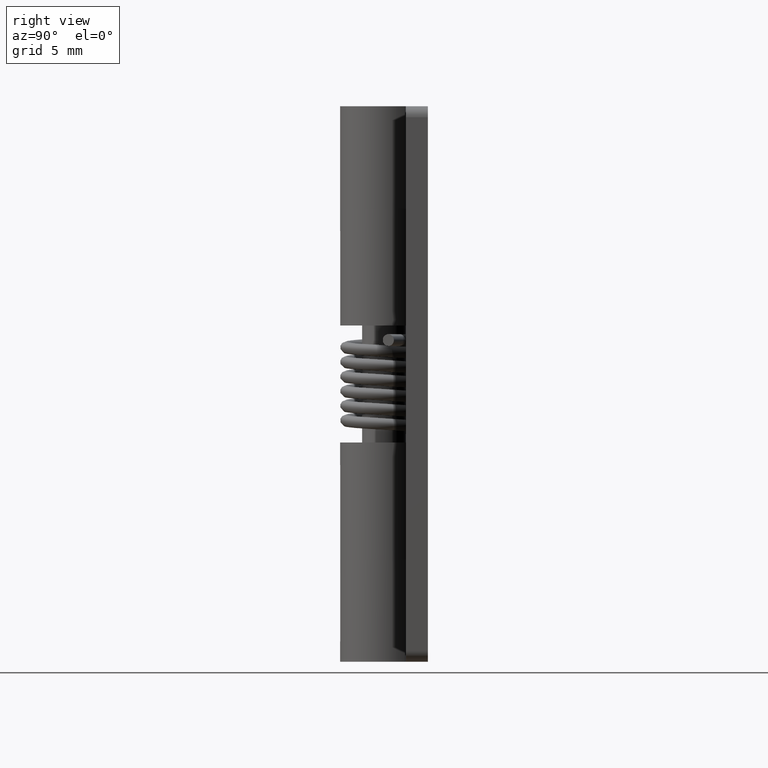
[diagram: clean part render]
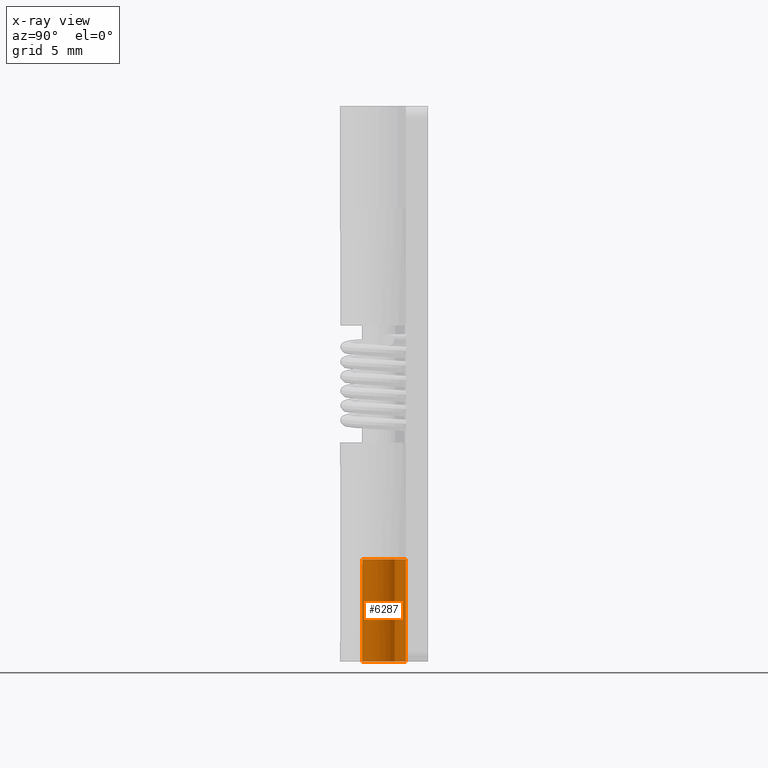
[diagram: x-ray — body ghosted, one internal face saturated and labeled with its STEP entity id]
A machine part, right view, then the same camera in x-ray: the body is ghosted and one INTERNAL B-rep face — a face not visible from any outside direction — is saturated and labeled: STEP entity #6287.
In plain terms, the highlighted face is a freeform B-spline surface patch.
Its self-contained STEP definition (entity closure, byte-faithful):
#5927=CARTESIAN_POINT('',(1.313154598666890,0.725000000000000,6.999992000000000));
#5928=VERTEX_POINT('',#5927);
#5934=CARTESIAN_POINT('',(0.0,1.500000000000000,6.999992000000000));
#5935=VERTEX_POINT('',#5934);
#5936=CARTESIAN_POINT('',(0.0,1.500000000000000,6.999992000000000));
#5937=CARTESIAN_POINT('',(-1.145299021212404,1.500000000000000,6.999992000000000));
#5938=CARTESIAN_POINT('',(-1.447014444021651,0.395157182387862,6.999992000000000));
#5939=CARTESIAN_POINT('',(-1.748729866830898,-0.709685635224276,6.999992000000000));
#5940=CARTESIAN_POINT('',(-0.762397534098845,-1.291801068276381,6.999992000000000));
#5941=CARTESIAN_POINT('',(0.223934798633206,-1.873916501328486,6.999992000000000));
#5942=CARTESIAN_POINT('',(1.045325295443045,-1.075776476182163,6.999992000000000));
#5943=CARTESIAN_POINT('',(1.866715792252885,-0.277636451035838,6.999992000000000));
#5944=CARTESIAN_POINT('',(1.313154598666890,0.724999999999999,6.999992000000000));
#5952=(BOUNDED_CURVE()B_SPLINE_CURVE(2,(#5936,#5937,#5938,#5939,#5940,#5941,#5942,#5943,#5944),.UNSPECIFIED.,.F.,.U.)B_SPLINE_CURVE_WITH_KNOTS((3,2,2,2,3),(0.0,0.250000000000000,0.500000000000000,0.750000000000000,1.0),.UNSPECIFIED.)CURVE()GEOMETRIC_REPRESENTATION_ITEM()RATIONAL_B_SPLINE_CURVE((1.0,0.794807562115481,1.0,0.794807562115481,1.0,0.794807562115481,1.0,0.794807562115481,1.0))REPRESENTATION_ITEM(''));
#5953=EDGE_CURVE('',#5935,#5928,#5952,.T.);
#6151=CARTESIAN_POINT('',(0.0,1.500000000000000,0.0));
#6152=VERTEX_POINT('',#6151);
#6158=CARTESIAN_POINT('',(1.313154598666890,0.725000000000000,0.0));
#6159=VERTEX_POINT('',#6158);
#6160=CARTESIAN_POINT('',(1.313154598666890,0.725000000000000,0.0));
#6161=CARTESIAN_POINT('',(1.866715792252885,-0.277636451035838,0.0));
#6162=CARTESIAN_POINT('',(1.045325295443045,-1.075776476182162,0.0));
#6163=CARTESIAN_POINT('',(0.223934798633207,-1.873916501328486,0.0));
#6164=CARTESIAN_POINT('',(-0.762397534098844,-1.291801068276382,0.0));
#6165=CARTESIAN_POINT('',(-1.748729866830896,-0.709685635224277,0.0));
#6166=CARTESIAN_POINT('',(-1.447014444021651,0.395157182387861,0.0));
#6167=CARTESIAN_POINT('',(-1.145299021212405,1.500000000000000,0.0));
#6168=CARTESIAN_POINT('',(0.0,1.500000000000000,0.0));
#6176=(BOUNDED_CURVE()B_SPLINE_CURVE(2,(#6160,#6161,#6162,#6163,#6164,#6165,#6166,#6167,#6168),.UNSPECIFIED.,.F.,.U.)B_SPLINE_CURVE_WITH_KNOTS((3,2,2,2,3),(0.0,0.250000000000000,0.500000000000000,0.750000000000000,1.0),.UNSPECIFIED.)CURVE()GEOMETRIC_REPRESENTATION_ITEM()RATIONAL_B_SPLINE_CURVE((1.0,0.794807562115481,1.0,0.794807562115481,1.0,0.794807562115481,1.0,0.794807562115481,1.0))REPRESENTATION_ITEM(''));
#6177=EDGE_CURVE('',#6159,#6152,#6176,.T.);
#6227=CARTESIAN_POINT('',(1.313154598666890,0.725000000000000,0.0));
#6228=CARTESIAN_POINT('',(1.313154598666890,0.725000000000000,6.999992000000000));
#6229=QUASI_UNIFORM_CURVE('',1,(#6227,#6228),.UNSPECIFIED.,.F.,.U.);
#6230=EDGE_CURVE('',#6159,#5928,#6229,.T.);
#6255=CARTESIAN_POINT('',(1.292443740662288,0.761307544441056,-0.174999800000000));
#6256=CARTESIAN_POINT('',(1.292443740662288,0.761307544441056,7.179366795000001));
#6257=CARTESIAN_POINT('',(2.227008576976307,-0.825268710788276,-0.174999800000000));
#6258=CARTESIAN_POINT('',(2.227008576976307,-0.825268710788276,7.179366795000000));
#6259=CARTESIAN_POINT('',(0.484224568315243,-1.419692420012136,-0.174999800000000));
#6260=CARTESIAN_POINT('',(0.484224568315243,-1.419692420012136,7.179366795000001));
#6261=CARTESIAN_POINT('',(-1.258559440345821,-2.014116129235997,-0.174999800000000));
#6262=CARTESIAN_POINT('',(-1.258559440345821,-2.014116129235997,7.179366795000000));
#6263=CARTESIAN_POINT('',(-1.488281173998764,-0.187134035174956,-0.174999800000000));
#6264=CARTESIAN_POINT('',(-1.488281173998764,-0.187134035174956,7.179366795000001));
#6265=CARTESIAN_POINT('',(-1.718002907651707,1.639848058886086,-0.174999800000000));
#6266=CARTESIAN_POINT('',(-1.718002907651707,1.639848058886086,7.179366795000000));
#6267=CARTESIAN_POINT('',(0.117688643591768,1.495376000599692,-0.174999800000000));
#6268=CARTESIAN_POINT('',(0.117688643591768,1.495376000599692,7.179366795000001));
#6276=(BOUNDED_SURFACE()B_SPLINE_SURFACE(1,2,((#6255,#6257,#6259,#6261,#6263,#6265,#6267),(#6256,#6258,#6260,#6262,#6264,#6266,#6268)),.UNSPECIFIED.,.F.,.F.,.U.)B_SPLINE_SURFACE_WITH_KNOTS((2,2),(3,2,2,3),(0.0,7.354366595000001),(0.0,2.851148607098875,5.702297214197750,8.553445821296625),.UNSPECIFIED.)GEOMETRIC_REPRESENTATION_ITEM()RATIONAL_B_SPLINE_SURFACE(((1.0,0.631578351302498,1.0,0.631578351302498,1.0,0.631578351302498,1.0),(1.0,0.631578351302498,1.0,0.631578351302498,1.0,0.631578351302498,1.0)))REPRESENTATION_ITEM('')SURFACE());
#6277=CARTESIAN_POINT('',(0.0,1.500000000000000,0.0));
#6278=CARTESIAN_POINT('',(0.0,1.500000000000000,6.999992000000000));
#6279=QUASI_UNIFORM_CURVE('',1,(#6277,#6278),.UNSPECIFIED.,.F.,.U.);
#6280=EDGE_CURVE('',#6152,#5935,#6279,.T.);
#6281=ORIENTED_EDGE('',*,*,#6280,.T.);
#6282=ORIENTED_EDGE('',*,*,#5953,.T.);
#6283=ORIENTED_EDGE('',*,*,#6230,.F.);
#6284=ORIENTED_EDGE('',*,*,#6177,.T.);
#6285=EDGE_LOOP('',(#6281,#6282,#6283,#6284));
#6286=FACE_OUTER_BOUND('',#6285,.T.);
#6287=ADVANCED_FACE('',(#6286),#6276,.F.);